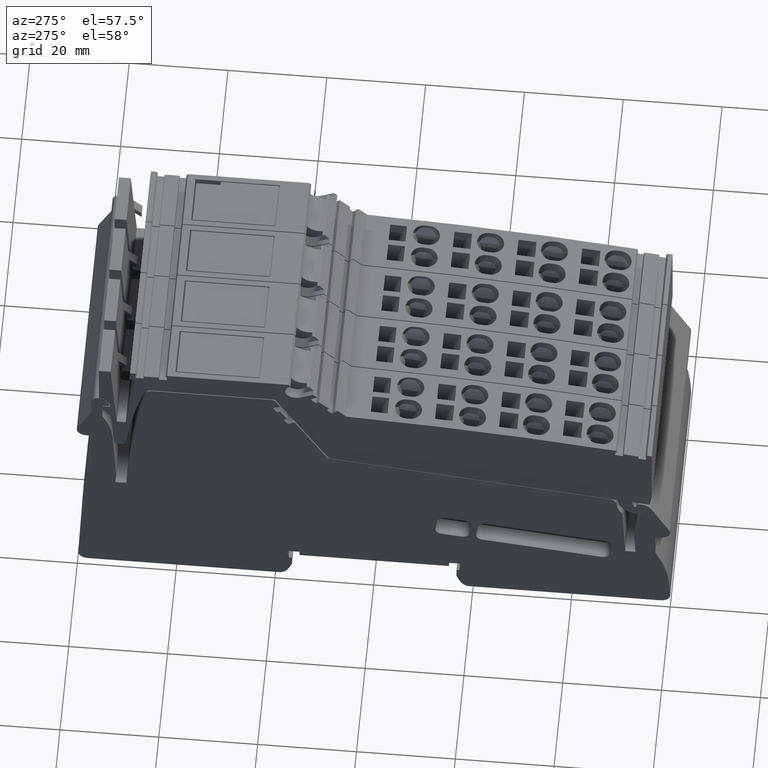
[diagram: clean part render]
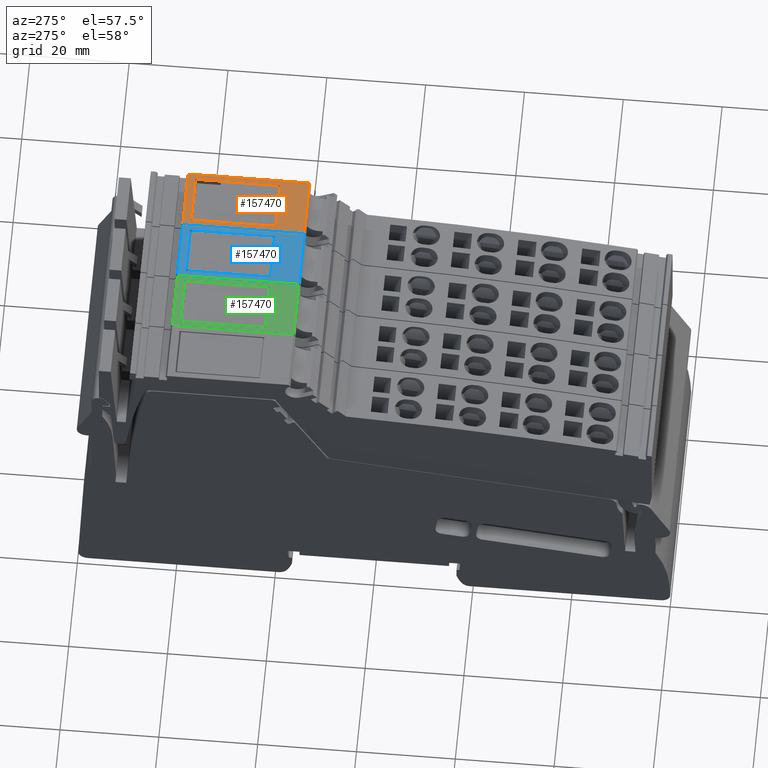
[diagram: same view with three faces highlighted in distinct colors, each labeled with its STEP entity id]
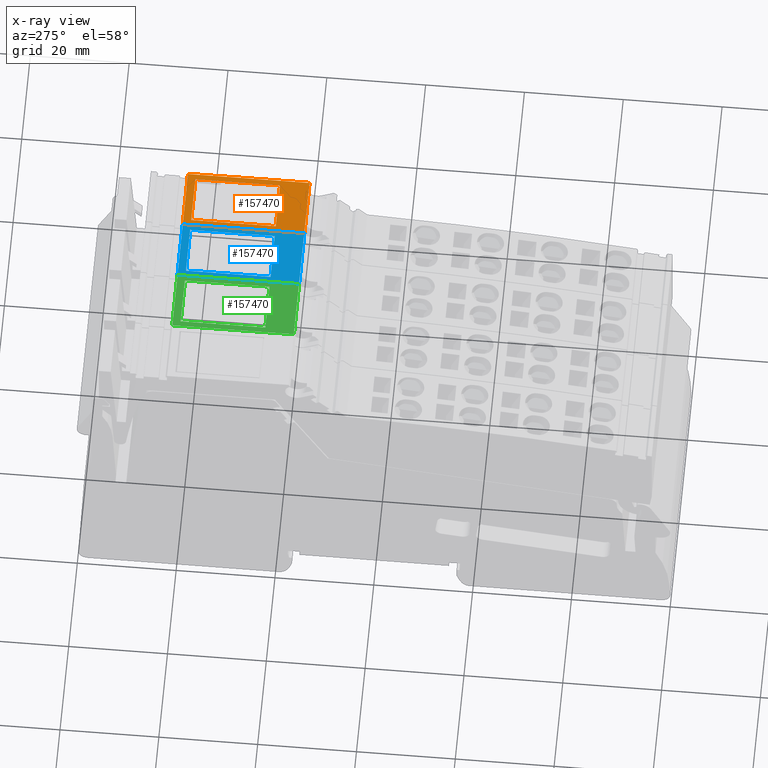
[diagram: x-ray of the same camera — body ghosted, the three highlighted faces saturated]
A machine part, auxiliary view with three faces highlighted in distinct colors.
The next image is the same camera in x-ray (body ghosted, the three faces saturated) — at least one of them is partly hidden behind the body in this view.
Their STEP definitions:

[orange] entity #157470 — the highlighted planar face has unit normal (-0, -0, 1).
#4800=CARTESIAN_POINT('',(111.280097074187,84.4866197234245,-47.425));
#4810=VERTEX_POINT('',#4800);
#4840=CARTESIAN_POINT('',(1.4210854715202E-14,84.4866197234245,-47.425))
;
#4850=DIRECTION('',(-1.,0.,0.));
#4860=VECTOR('',#4850,1.);
#4870=LINE('',#4840,#4860);
#4880=CARTESIAN_POINT('',(86.6847904689086,84.4866197234246,-47.425));
#4890=VERTEX_POINT('',#4880);
#4900=EDGE_CURVE('',#4810,#4890,#4870,.T.);
#5530=CARTESIAN_POINT('',(86.6847904689085,84.4866197234245,-35.425));
#5540=VERTEX_POINT('',#5530);
#5570=CARTESIAN_POINT('',(1.4210854715202E-14,84.4866197234245,-35.425))
;
#5580=DIRECTION('',(-1.,0.,0.));
#5590=VECTOR('',#5580,1.);
#5600=LINE('',#5570,#5590);
#5610=CARTESIAN_POINT('',(111.280097074188,84.4866197234245,-35.425));
#5620=VERTEX_POINT('',#5610);
#5630=EDGE_CURVE('',#5620,#5540,#5600,.T.);
#9480=CARTESIAN_POINT('',(111.280097074187,84.4866197234245,0.));
#9490=DIRECTION('',(-8.85927774418128E-33,0.,1.));
#9500=VECTOR('',#9490,1.);
#9510=LINE('',#9480,#9500);
#9520=EDGE_CURVE('',#4810,#5620,#9510,.T.);
#155210=CARTESIAN_POINT('',(92.5604636963374,84.4866197234245,-46.325));
#155220=VERTEX_POINT('',#155210);
#155460=CARTESIAN_POINT('',(92.5604636963374,84.4866197234245,-36.525));
#155470=VERTEX_POINT('',#155460);
#155500=CARTESIAN_POINT('',(92.5604636963374,84.4866197234245,0.));
#155510=DIRECTION('',(8.85927774418128E-33,0.,-1.));
#155520=VECTOR('',#155510,1.);
#155530=LINE('',#155500,#155520);
#155540=EDGE_CURVE('',#155470,#155220,#155530,.T.);
#156300=CARTESIAN_POINT('',(109.676285095723,84.4866197234245,-46.325));
#156310=VERTEX_POINT('',#156300);
#156340=CARTESIAN_POINT('',(109.676285095723,84.4866197234245,0.));
#156350=DIRECTION('',(-8.85927774418128E-33,0.,1.));
#156360=VECTOR('',#156350,1.);
#156370=LINE('',#156340,#156360);
#156380=CARTESIAN_POINT('',(109.676285095723,84.4866197234245,-36.525));
#156390=VERTEX_POINT('',#156380);
#156400=EDGE_CURVE('',#156310,#156390,#156370,.T.);
#156630=CARTESIAN_POINT('',(1.4210854715202E-14,84.4866197234245,-46.325
));
#156640=DIRECTION('',(-1.,0.,8.85927774418128E-33));
#156650=VECTOR('',#156640,1.);
#156660=LINE('',#156630,#156650);
#156670=EDGE_CURVE('',#156310,#155220,#156660,.T.);
#156900=CARTESIAN_POINT('',(1.4210854715202E-14,84.4866197234245,-36.525
));
#156910=DIRECTION('',(1.,0.,-8.85927774418128E-33));
#156920=VECTOR('',#156910,1.);
#156930=LINE('',#156900,#156920);
#156940=EDGE_CURVE('',#155470,#156390,#156930,.T.);
#157250=CARTESIAN_POINT('',(110.101652641052,84.4866197234245,-36.275));
#157260=DIRECTION('',(0.,1.,0.));
#157270=DIRECTION('',(-1.,0.,8.85927774418128E-33));
#157280=AXIS2_PLACEMENT_3D('',#157250,#157260,#157270);
#157290=PLANE('',#157280);
#157300=ORIENTED_EDGE('',*,*,#156940,.F.);
#157310=ORIENTED_EDGE('',*,*,#156400,.T.);
#157320=ORIENTED_EDGE('',*,*,#156670,.F.);
#157330=ORIENTED_EDGE('',*,*,#155540,.T.);
#157340=EDGE_LOOP('',(#157330,#157320,#157310,#157300));
#157350=FACE_BOUND('',#157340,.T.);
#157360=ORIENTED_EDGE('',*,*,#5630,.F.);
#157370=CARTESIAN_POINT('',(86.6847904689085,84.4866197234245,0.));
#157380=DIRECTION('',(8.85927774418128E-33,0.,-1.));
#157390=VECTOR('',#157380,1.);
#157400=LINE('',#157370,#157390);
#157410=EDGE_CURVE('',#5540,#4890,#157400,.T.);
#157420=ORIENTED_EDGE('',*,*,#157410,.F.);
#157430=ORIENTED_EDGE('',*,*,#4900,.T.);
#157440=ORIENTED_EDGE('',*,*,#9520,.F.);
#157450=EDGE_LOOP('',(#157440,#157430,#157420,#157360));
#157460=FACE_OUTER_BOUND('',#157450,.T.);
#157470=ADVANCED_FACE('',(#157350,#157460),#157290,.T.);

[blue] entity #157470 — the highlighted planar face has unit normal (-0, -0, 1).
#4800=CARTESIAN_POINT('',(111.280097074187,84.4866197234245,-47.425));
#4810=VERTEX_POINT('',#4800);
#4840=CARTESIAN_POINT('',(1.4210854715202E-14,84.4866197234245,-47.425))
;
#4850=DIRECTION('',(-1.,0.,0.));
#4860=VECTOR('',#4850,1.);
#4870=LINE('',#4840,#4860);
#4880=CARTESIAN_POINT('',(86.6847904689086,84.4866197234246,-47.425));
#4890=VERTEX_POINT('',#4880);
#4900=EDGE_CURVE('',#4810,#4890,#4870,.T.);
#5530=CARTESIAN_POINT('',(86.6847904689085,84.4866197234245,-35.425));
#5540=VERTEX_POINT('',#5530);
#5570=CARTESIAN_POINT('',(1.4210854715202E-14,84.4866197234245,-35.425))
;
#5580=DIRECTION('',(-1.,0.,0.));
#5590=VECTOR('',#5580,1.);
#5600=LINE('',#5570,#5590);
#5610=CARTESIAN_POINT('',(111.280097074188,84.4866197234245,-35.425));
#5620=VERTEX_POINT('',#5610);
#5630=EDGE_CURVE('',#5620,#5540,#5600,.T.);
#9480=CARTESIAN_POINT('',(111.280097074187,84.4866197234245,0.));
#9490=DIRECTION('',(-8.85927774418128E-33,0.,1.));
#9500=VECTOR('',#9490,1.);
#9510=LINE('',#9480,#9500);
#9520=EDGE_CURVE('',#4810,#5620,#9510,.T.);
#155210=CARTESIAN_POINT('',(92.5604636963374,84.4866197234245,-46.325));
#155220=VERTEX_POINT('',#155210);
#155460=CARTESIAN_POINT('',(92.5604636963374,84.4866197234245,-36.525));
#155470=VERTEX_POINT('',#155460);
#155500=CARTESIAN_POINT('',(92.5604636963374,84.4866197234245,0.));
#155510=DIRECTION('',(8.85927774418128E-33,0.,-1.));
#155520=VECTOR('',#155510,1.);
#155530=LINE('',#155500,#155520);
#155540=EDGE_CURVE('',#155470,#155220,#155530,.T.);
#156300=CARTESIAN_POINT('',(109.676285095723,84.4866197234245,-46.325));
#156310=VERTEX_POINT('',#156300);
#156340=CARTESIAN_POINT('',(109.676285095723,84.4866197234245,0.));
#156350=DIRECTION('',(-8.85927774418128E-33,0.,1.));
#156360=VECTOR('',#156350,1.);
#156370=LINE('',#156340,#156360);
#156380=CARTESIAN_POINT('',(109.676285095723,84.4866197234245,-36.525));
#156390=VERTEX_POINT('',#156380);
#156400=EDGE_CURVE('',#156310,#156390,#156370,.T.);
#156630=CARTESIAN_POINT('',(1.4210854715202E-14,84.4866197234245,-46.325
));
#156640=DIRECTION('',(-1.,0.,8.85927774418128E-33));
#156650=VECTOR('',#156640,1.);
#156660=LINE('',#156630,#156650);
#156670=EDGE_CURVE('',#156310,#155220,#156660,.T.);
#156900=CARTESIAN_POINT('',(1.4210854715202E-14,84.4866197234245,-36.525
));
#156910=DIRECTION('',(1.,0.,-8.85927774418128E-33));
#156920=VECTOR('',#156910,1.);
#156930=LINE('',#156900,#156920);
#156940=EDGE_CURVE('',#155470,#156390,#156930,.T.);
#157250=CARTESIAN_POINT('',(110.101652641052,84.4866197234245,-36.275));
#157260=DIRECTION('',(0.,1.,0.));
#157270=DIRECTION('',(-1.,0.,8.85927774418128E-33));
#157280=AXIS2_PLACEMENT_3D('',#157250,#157260,#157270);
#157290=PLANE('',#157280);
#157300=ORIENTED_EDGE('',*,*,#156940,.F.);
#157310=ORIENTED_EDGE('',*,*,#156400,.T.);
#157320=ORIENTED_EDGE('',*,*,#156670,.F.);
#157330=ORIENTED_EDGE('',*,*,#155540,.T.);
#157340=EDGE_LOOP('',(#157330,#157320,#157310,#157300));
#157350=FACE_BOUND('',#157340,.T.);
#157360=ORIENTED_EDGE('',*,*,#5630,.F.);
#157370=CARTESIAN_POINT('',(86.6847904689085,84.4866197234245,0.));
#157380=DIRECTION('',(8.85927774418128E-33,0.,-1.));
#157390=VECTOR('',#157380,1.);
#157400=LINE('',#157370,#157390);
#157410=EDGE_CURVE('',#5540,#4890,#157400,.T.);
#157420=ORIENTED_EDGE('',*,*,#157410,.F.);
#157430=ORIENTED_EDGE('',*,*,#4900,.T.);
#157440=ORIENTED_EDGE('',*,*,#9520,.F.);
#157450=EDGE_LOOP('',(#157440,#157430,#157420,#157360));
#157460=FACE_OUTER_BOUND('',#157450,.T.);
#157470=ADVANCED_FACE('',(#157350,#157460),#157290,.T.);

[green] entity #157470 — the highlighted planar face has unit normal (-0, -0, 1).
#4800=CARTESIAN_POINT('',(111.280097074187,84.4866197234245,-47.425));
#4810=VERTEX_POINT('',#4800);
#4840=CARTESIAN_POINT('',(1.4210854715202E-14,84.4866197234245,-47.425))
;
#4850=DIRECTION('',(-1.,0.,0.));
#4860=VECTOR('',#4850,1.);
#4870=LINE('',#4840,#4860);
#4880=CARTESIAN_POINT('',(86.6847904689086,84.4866197234246,-47.425));
#4890=VERTEX_POINT('',#4880);
#4900=EDGE_CURVE('',#4810,#4890,#4870,.T.);
#5530=CARTESIAN_POINT('',(86.6847904689085,84.4866197234245,-35.425));
#5540=VERTEX_POINT('',#5530);
#5570=CARTESIAN_POINT('',(1.4210854715202E-14,84.4866197234245,-35.425))
;
#5580=DIRECTION('',(-1.,0.,0.));
#5590=VECTOR('',#5580,1.);
#5600=LINE('',#5570,#5590);
#5610=CARTESIAN_POINT('',(111.280097074188,84.4866197234245,-35.425));
#5620=VERTEX_POINT('',#5610);
#5630=EDGE_CURVE('',#5620,#5540,#5600,.T.);
#9480=CARTESIAN_POINT('',(111.280097074187,84.4866197234245,0.));
#9490=DIRECTION('',(-8.85927774418128E-33,0.,1.));
#9500=VECTOR('',#9490,1.);
#9510=LINE('',#9480,#9500);
#9520=EDGE_CURVE('',#4810,#5620,#9510,.T.);
#155210=CARTESIAN_POINT('',(92.5604636963374,84.4866197234245,-46.325));
#155220=VERTEX_POINT('',#155210);
#155460=CARTESIAN_POINT('',(92.5604636963374,84.4866197234245,-36.525));
#155470=VERTEX_POINT('',#155460);
#155500=CARTESIAN_POINT('',(92.5604636963374,84.4866197234245,0.));
#155510=DIRECTION('',(8.85927774418128E-33,0.,-1.));
#155520=VECTOR('',#155510,1.);
#155530=LINE('',#155500,#155520);
#155540=EDGE_CURVE('',#155470,#155220,#155530,.T.);
#156300=CARTESIAN_POINT('',(109.676285095723,84.4866197234245,-46.325));
#156310=VERTEX_POINT('',#156300);
#156340=CARTESIAN_POINT('',(109.676285095723,84.4866197234245,0.));
#156350=DIRECTION('',(-8.85927774418128E-33,0.,1.));
#156360=VECTOR('',#156350,1.);
#156370=LINE('',#156340,#156360);
#156380=CARTESIAN_POINT('',(109.676285095723,84.4866197234245,-36.525));
#156390=VERTEX_POINT('',#156380);
#156400=EDGE_CURVE('',#156310,#156390,#156370,.T.);
#156630=CARTESIAN_POINT('',(1.4210854715202E-14,84.4866197234245,-46.325
));
#156640=DIRECTION('',(-1.,0.,8.85927774418128E-33));
#156650=VECTOR('',#156640,1.);
#156660=LINE('',#156630,#156650);
#156670=EDGE_CURVE('',#156310,#155220,#156660,.T.);
#156900=CARTESIAN_POINT('',(1.4210854715202E-14,84.4866197234245,-36.525
));
#156910=DIRECTION('',(1.,0.,-8.85927774418128E-33));
#156920=VECTOR('',#156910,1.);
#156930=LINE('',#156900,#156920);
#156940=EDGE_CURVE('',#155470,#156390,#156930,.T.);
#157250=CARTESIAN_POINT('',(110.101652641052,84.4866197234245,-36.275));
#157260=DIRECTION('',(0.,1.,0.));
#157270=DIRECTION('',(-1.,0.,8.85927774418128E-33));
#157280=AXIS2_PLACEMENT_3D('',#157250,#157260,#157270);
#157290=PLANE('',#157280);
#157300=ORIENTED_EDGE('',*,*,#156940,.F.);
#157310=ORIENTED_EDGE('',*,*,#156400,.T.);
#157320=ORIENTED_EDGE('',*,*,#156670,.F.);
#157330=ORIENTED_EDGE('',*,*,#155540,.T.);
#157340=EDGE_LOOP('',(#157330,#157320,#157310,#157300));
#157350=FACE_BOUND('',#157340,.T.);
#157360=ORIENTED_EDGE('',*,*,#5630,.F.);
#157370=CARTESIAN_POINT('',(86.6847904689085,84.4866197234245,0.));
#157380=DIRECTION('',(8.85927774418128E-33,0.,-1.));
#157390=VECTOR('',#157380,1.);
#157400=LINE('',#157370,#157390);
#157410=EDGE_CURVE('',#5540,#4890,#157400,.T.);
#157420=ORIENTED_EDGE('',*,*,#157410,.F.);
#157430=ORIENTED_EDGE('',*,*,#4900,.T.);
#157440=ORIENTED_EDGE('',*,*,#9520,.F.);
#157450=EDGE_LOOP('',(#157440,#157430,#157420,#157360));
#157460=FACE_OUTER_BOUND('',#157450,.T.);
#157470=ADVANCED_FACE('',(#157350,#157460),#157290,.T.);